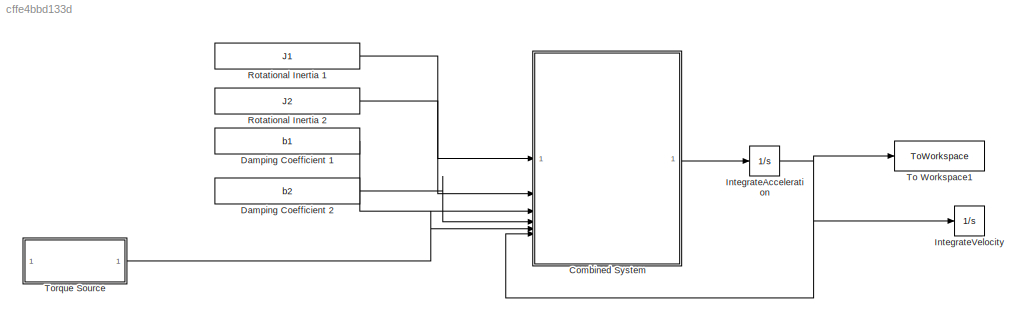
MODEL slx_cffe4bbd133d
KIND model
CONFIG AbsTol = auto
CONFIG EnableMultiTasking = off
CONFIG FixedStep = 1
CONFIG MaxStep = auto
CONFIG MinStep = auto
CONFIG RelTol = 1e-3
CONFIG SampleTimeConstraint = Unconstrained
CONFIG SolverName = ode4
CONFIG StartTime = 0.0
CONFIG StopTime = 25
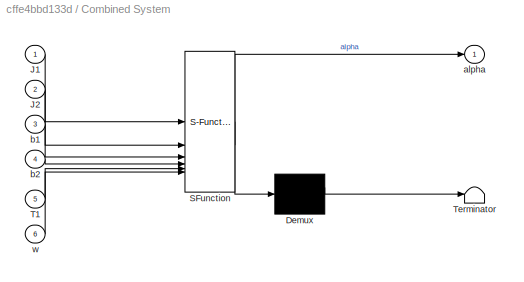
BLOCK [SubSystem] Combined System
  ErrorFcn = Stateflow.Translate.translate
  PermitHierarchicalResolution = ExplicitOnly
  SFBlockType = MATLAB Function
  TreatAsAtomicUnit = on
BLOCK [Demux] Combined System/ Demux 
  Outputs = 1
BLOCK [S-Function] Combined System/ SFunction 
  EnableBusSupport = on
  FunctionName = sf_sfun
  PortCounts = [6 2]
  SFcnIsStateOwnerBlock = off
  SFunctionDeploymentMode = off
  Tag = Stateflow S-Function 2
BLOCK [Terminator] Combined System/ Terminator 
BLOCK [Inport] Combined System/J1
BLOCK [Inport] Combined System/J2
  Port = 2
BLOCK [Inport] Combined System/T1
  Port = 5
BLOCK [Outport] Combined System/alpha
BLOCK [Inport] Combined System/b1
  Port = 3
BLOCK [Inport] Combined System/b2
  Port = 4
BLOCK [Inport] Combined System/w
  Port = 6
BLOCK [Constant] Damping Coefficient 1
  Value = b1
BLOCK [Constant] Damping Coefficient 2
  Value = b2
BLOCK [Integrator] IntegrateAcceleration
  InitialCondition = omega_init
BLOCK [Integrator] IntegrateVelocity
  InitialCondition = theta0
BLOCK [Constant] Rotational Inertia 1
  Value = J1
BLOCK [Constant] Rotational Inertia 2
  Value = J2
BLOCK [ToWorkspace] To Workspace1
  FixptAsFi = on
  MaxDataPoints = inf
  SampleTime = -1
  SaveFormat = Timeseries
  VariableName = omegaoption2
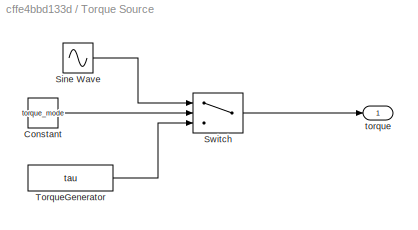
BLOCK [SubSystem] Torque Source
BLOCK [Constant] Torque Source/Constant
  Value = torque_mode
BLOCK [Sin] Torque Source/Sine Wave
  Frequency = w_freq
  SampleTime = 0
BLOCK [Switch] Torque Source/Switch
  Criteria = u2 > Threshold
  InputSameDT = off
  SaturateOnIntegerOverflow = off
BLOCK [Constant] Torque Source/TorqueGenerator
  Value = tau
BLOCK [Outport] Torque Source/torque
LINE Combined System:1 -> IntegrateAcceleration:1
LINE Damping Coefficient 1:1 -> Combined System:3
LINE Damping Coefficient 2:1 -> Combined System:4
NET IntegrateAcceleration:1 -> Combined System:6, IntegrateVelocity:1, To Workspace1:1
LINE Rotational Inertia 1:1 -> Combined System:1
LINE Rotational Inertia 2:1 -> Combined System:2
LINE Torque Source/Constant:1 -> Torque Source/Switch:2
LINE Torque Source/Sine Wave:1 -> Torque Source/Switch:1
LINE Torque Source/Switch:1 -> Torque Source/torque:1
LINE Torque Source/TorqueGenerator:1 -> Torque Source/Switch:3
LINE Torque Source:1 -> Combined System:5
note: NET lines group one-source signal fan-out (src -> all destinations, sorted); 1:1 wires keep LINE
CHART Combined System states=1 transitions=1
  STATE_LABEL 'eML_blk_kernel()'
  STATE_LABEL 'SCRIPT:\nfunction alpha = fcn(J1, J2, b1, b2, T1, w)\nalpha = (1/(J1+J2))*T1-(((b1+b2)/(J1+J2))*w);\n'
CHART  states=0 transitions=0
